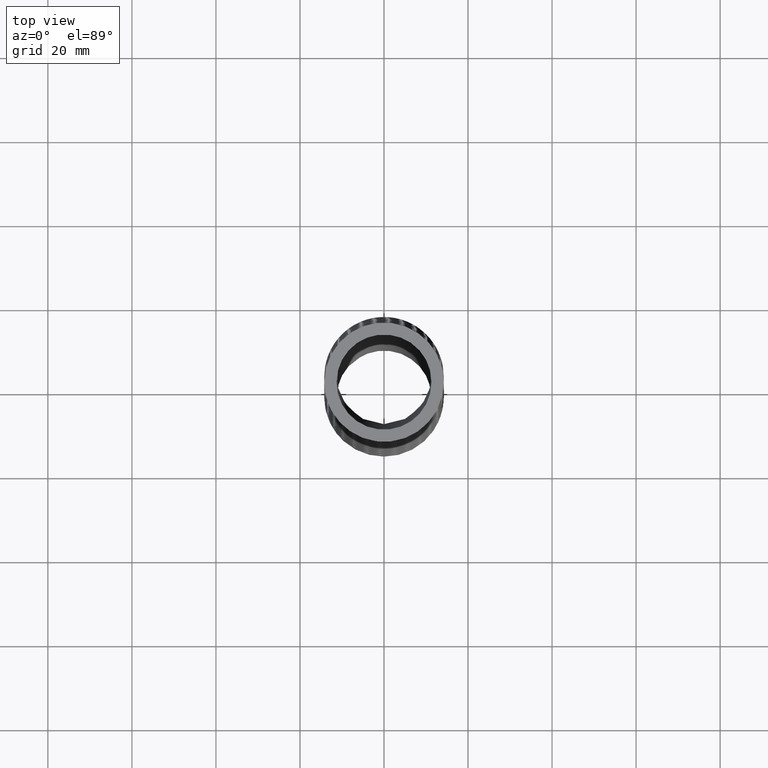
[diagram: clean part render]
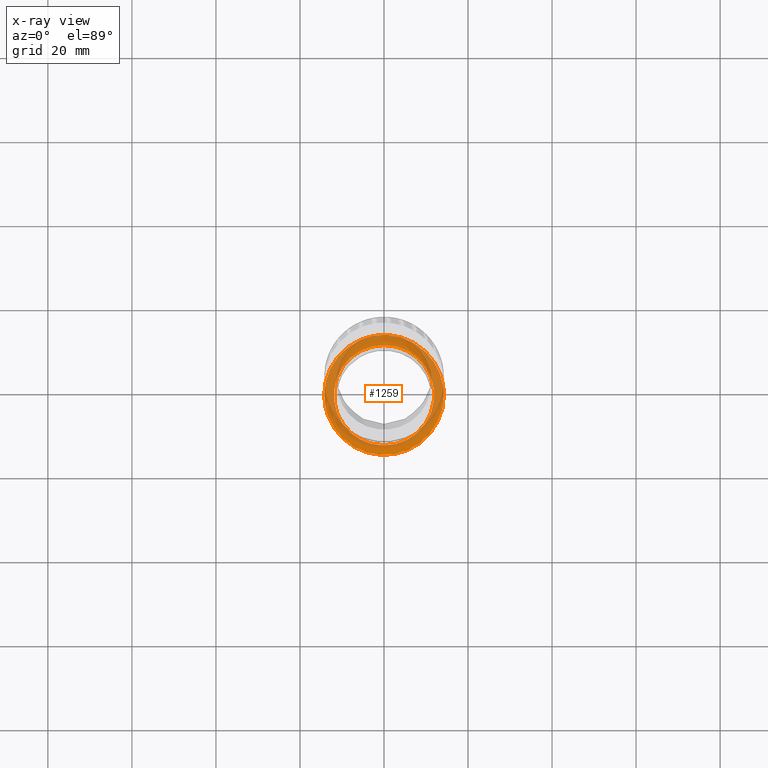
[diagram: x-ray — body ghosted, one internal face saturated and labeled with its STEP entity id]
A machine part, top view, then the same camera in x-ray: the body is ghosted and one INTERNAL B-rep face — a face not visible from any outside direction — is saturated and labeled: STEP entity #1259.
In plain terms, the highlighted planar face has unit normal (0, -0, 1).
Its self-contained STEP definition (entity closure, byte-faithful):
#174 = VERTEX_POINT ( 'NONE', #15003 ) ;
#186 = VERTEX_POINT ( 'NONE', #15100 ) ;
#205 = EDGE_CURVE ( 'NONE', #174, #186, #15317, .T. ) ;
#306 = EDGE_CURVE ( 'NONE', #186, #174, #15967, .T. ) ;
#1220 = EDGE_CURVE ( 'NONE', #12479, #12477, #4509, .T. ) ;
#1250 = ORIENTED_EDGE ( 'NONE', *, *, #12475, .F. ) ;
#1254 = ORIENTED_EDGE ( 'NONE', *, *, #1220, .F. ) ;
#1255 = ORIENTED_EDGE ( 'NONE', *, *, #306, .F. ) ;
#1256 = EDGE_LOOP ( 'NONE', ( #1250, #1254 ) ) ;
#1257 = ORIENTED_EDGE ( 'NONE', *, *, #205, .F. ) ;
#1258 = EDGE_LOOP ( 'NONE', ( #1257, #1255 ) ) ;
#1259 = ADVANCED_FACE ( 'NONE', ( #4606, #4605 ), #4647, .T. ) ;
#4505 = DIRECTION ( 'NONE',  ( 0.0000000000000000000, -1.000000000000000000, 0.0000000000000000000 ) ) ;
#4506 = DIRECTION ( 'NONE',  ( 0.0000000000000000000, -1.734723475976807100E-018, 1.000000000000000000 ) ) ;
#4507 = CARTESIAN_POINT ( 'NONE',  ( 0.0000000000000000000, -0.01280957977211061000, -6.354636470994573300 ) ) ;
#4508 = AXIS2_PLACEMENT_3D ( 'NONE', #4507, #4506, #4505 ) ;
#4509 = CIRCLE ( 'NONE', #4508, 0.4700000000000000300 ) ;
#4605 = FACE_BOUND ( 'NONE', #1256, .T. ) ;
#4606 = FACE_OUTER_BOUND ( 'NONE', #1258, .T. ) ;
#4642 = DIRECTION ( 'NONE',  ( 0.0000000000000000000, -1.000000000000000000, -1.734723475976807100E-018 ) ) ;
#4643 = DIRECTION ( 'NONE',  ( 0.0000000000000000000, -1.734723475976807100E-018, 1.000000000000000000 ) ) ;
#4644 = CARTESIAN_POINT ( 'NONE',  ( 0.0000000000000000000, 0.5571904202278894500, -6.354636470994573300 ) ) ;
#4645 = AXIS2_PLACEMENT_3D ( 'NONE', #4644, #4643, #4642 ) ;
#4647 = PLANE ( 'NONE',  #4645 ) ;
#12475 = EDGE_CURVE ( 'NONE', #12477, #12479, #14051, .T. ) ;
#12477 = VERTEX_POINT ( 'NONE', #14043 ) ;
#12479 = VERTEX_POINT ( 'NONE', #14042 ) ;
#14042 = CARTESIAN_POINT ( 'NONE',  ( 5.755839955992560900E-017, 0.4571904202278894200, -6.354636470994573300 ) ) ;
#14043 = CARTESIAN_POINT ( 'NONE',  ( 0.0000000000000000000, -0.4828095797721107000, -6.354636470994573300 ) ) ;
#14046 = DIRECTION ( 'NONE',  ( 0.0000000000000000000, -1.000000000000000000, 0.0000000000000000000 ) ) ;
#14047 = DIRECTION ( 'NONE',  ( 0.0000000000000000000, -1.734723475976807100E-018, 1.000000000000000000 ) ) ;
#14048 = CARTESIAN_POINT ( 'NONE',  ( 0.0000000000000000000, -0.01280957977211061000, -6.354636470994573300 ) ) ;
#14049 = AXIS2_PLACEMENT_3D ( 'NONE', #14048, #14047, #14046 ) ;
#14051 = CIRCLE ( 'NONE', #14049, 0.4700000000000000300 ) ;
#15003 = CARTESIAN_POINT ( 'NONE',  ( 0.5600000000000000500, -0.01037383061314198700, -6.354636470994579500 ) ) ;
#15100 = CARTESIAN_POINT ( 'NONE',  ( -0.5600000000000000500, -0.01037383061314080600, -6.354636470994575100 ) ) ;
#15279 = CARTESIAN_POINT ( 'NONE',  ( -0.1808579587989493100, -0.5423119688939533900, -6.354636470994573300 ) ) ;
#15280 = CARTESIAN_POINT ( 'NONE',  ( -0.1454905953630621900, -0.5531183373080493800, -6.354636470994574200 ) ) ;
#15281 = CARTESIAN_POINT ( 'NONE',  ( -0.1275721228312021200, -0.5576293404690222400, -6.354636470994575100 ) ) ;
#15282 = CARTESIAN_POINT ( 'NONE',  ( -0.07367333323163234600, -0.5684201576753237200, -6.354636470994575100 ) ) ;
#15283 = CARTESIAN_POINT ( 'NONE',  ( -0.03732460443517755800, -0.5720541283505185000, -6.354636470994571500 ) ) ;
#15284 = CARTESIAN_POINT ( 'NONE',  ( 0.01782936696322707400, -0.5721089885147172500, -6.354636470994571500 ) ) ;
#15285 = CARTESIAN_POINT ( 'NONE',  ( 0.03640872356547724500, -0.5712062766642895800, -6.354636470994576000 ) ) ;
#15286 = CARTESIAN_POINT ( 'NONE',  ( 0.07303362757676648600, -0.5675990347252626300, -6.354636470994577700 ) ) ;
#15287 = CARTESIAN_POINT ( 'NONE',  ( 0.09114521388643535800, -0.5649033572603865400, -6.354636470994577700 ) ) ;
#15289 = CARTESIAN_POINT ( 'NONE',  ( 0.1448906080352742600, -0.5541989208449642500, -6.354636470994576000 ) ) ;
#15290 = CARTESIAN_POINT ( 'NONE',  ( 0.1799756806578664800, -0.5435841204427138700, -6.354636470994573300 ) ) ;
#15291 = CARTESIAN_POINT ( 'NONE',  ( 0.2483769479299998700, -0.5151830954904930100, -6.354636470994571500 ) ) ;
#15292 = CARTESIAN_POINT ( 'NONE',  ( 0.2806158683014474700, -0.4978521622199457700, -6.354636470994575100 ) ) ;
#15293 = CARTESIAN_POINT ( 'NONE',  ( 0.3261521112023451100, -0.4673523119050871900, -6.354636470994576000 ) ) ;
#15294 = CARTESIAN_POINT ( 'NONE',  ( 0.3408570015291312300, -0.4564295332653218200, -6.354636470994573300 ) ) ;
#15295 = CARTESIAN_POINT ( 'NONE',  ( 0.3692974163442016000, -0.4330371021214976500, -6.354636470994574200 ) ) ;
#15297 = CARTESIAN_POINT ( 'NONE',  ( 0.3830565421403572300, -0.4205288870238526000, -6.354636470994576000 ) ) ;
#15298 = CARTESIAN_POINT ( 'NONE',  ( 0.4219679047922531600, -0.3814881289121478400, -6.354636470994574200 ) ) ;
#15299 = CARTESIAN_POINT ( 'NONE',  ( 0.4450938228216611000, -0.3532185293387144500, -6.354636470994570600 ) ) ;
#15300 = CARTESIAN_POINT ( 'NONE',  ( 0.4756005292083905200, -0.3074826037075730800, -6.354636470994573300 ) ) ;
#15301 = CARTESIAN_POINT ( 'NONE',  ( 0.4850993537432531900, -0.2916172324547943700, -6.354636470994577700 ) ) ;
#15302 = CARTESIAN_POINT ( 'NONE',  ( 0.5024932025019865900, -0.2589995435519709100, -6.354636470994574200 ) ) ;
#15303 = CARTESIAN_POINT ( 'NONE',  ( 0.5103212272727029000, -0.2423883678677467300, -6.354636470994568900 ) ) ;
#15305 = CARTESIAN_POINT ( 'NONE',  ( 0.5312807019336366300, -0.1916764132990413100, -6.354636470994569700 ) ) ;
#15306 = CARTESIAN_POINT ( 'NONE',  ( 0.5419113616974211600, -0.1567054913572945600, -6.354636470994574200 ) ) ;
#15307 = CARTESIAN_POINT ( 'NONE',  ( 0.5527280874478626100, -0.1024643951573974100, -6.354636470994575100 ) ) ;
#15309 = CARTESIAN_POINT ( 'NONE',  ( 0.5554612462069205000, -0.08409181241841669200, -6.354636470994569700 ) ) ;
#15310 = CARTESIAN_POINT ( 'NONE',  ( 0.5590886373815613400, -0.04734590430146968400, -6.354636470994574200 ) ) ;
#15311 = CARTESIAN_POINT ( 'NONE',  ( 0.5599999999999999400, -0.02889781235425170600, -6.354636470994578600 ) ) ;
#15312 = CARTESIAN_POINT ( 'NONE',  ( 0.5600000000000000500, -0.01037383061314198700, -6.354636470994579500 ) ) ;
#15317 = B_SPLINE_CURVE_WITH_KNOTS ( 'NONE', 3,
 ( #15312, #15311, #15310, #15309, #15307, #15306, #15305, #15303, #15302, #15301, #15300, #15299, #15298, #15297, #15295, #15294, #15293, #15292, #15291, #15290, #15289, #15287, #15286, #15285, #15284, #15283, #15282, #15281, #15280, #15279, #15398, #15396, #15394, #15393, #15392, #15391, #15390, #15389, #15388, #15387, #15386, #15385, #15384, #15383, #15382, #15381, #15380, #15379, #15378 ),
 .UNSPECIFIED., .F., .F.,
 ( 4, 2, 2, 2, 2, 2, 2, 2, 2, 2, 2, 2, 2, 2, 2, 2, 2, 2, 1, 2, 2, 2, 2, 2, 4 ),
 ( 0.0000000000000000000, 0.001406658941568674200, 0.002813317883137348900, 0.005626635766274700400, 0.007033294707843374900, 0.008439953649412048500, 0.01125327153254939400, 0.01265993047411807100, 0.01406658941568674800, 0.01687990729882410400, 0.01969322518196146500, 0.02109988412353014400, 0.02250654306509882300, 0.02531986094823618400, 0.02672651988980485900, 0.02813317883137354100, 0.03094649671451089900, 0.03235315565607957400, 0.03375981459764825600, 0.03516647353921693900, 0.03657313248078561400, 0.03938645036392296500, 0.04079310930549164700, 0.04219976824706031500, 0.04501308613019766600 ),
 .UNSPECIFIED. ) ;
#15378 = CARTESIAN_POINT ( 'NONE',  ( -0.5600000000000000500, -0.01037383061314080600, -6.354636470994575100 ) ) ;
#15379 = CARTESIAN_POINT ( 'NONE',  ( -0.5600000000000000500, -0.04711048030803565600, -6.354636470994574200 ) ) ;
#15380 = CARTESIAN_POINT ( 'NONE',  ( -0.5564409735539356200, -0.08346236734306088100, -6.354636470994574200 ) ) ;
#15381 = CARTESIAN_POINT ( 'NONE',  ( -0.5457944829426544200, -0.1374163608213533900, -6.354636470994574200 ) ) ;
#15382 = CARTESIAN_POINT ( 'NONE',  ( -0.5413311504261456600, -0.1553802042001648200, -6.354636470994575100 ) ) ;
#15383 = CARTESIAN_POINT ( 'NONE',  ( -0.5306593002834629800, -0.1907529744849033300, -6.354636470994574200 ) ) ;
#15384 = CARTESIAN_POINT ( 'NONE',  ( -0.5244949889318443200, -0.2080450511208664400, -6.354636470994570600 ) ) ;
#15385 = CARTESIAN_POINT ( 'NONE',  ( -0.5035894488515317800, -0.2587728903551180800, -6.354636470994569700 ) ) ;
#15386 = CARTESIAN_POINT ( 'NONE',  ( -0.4864585882180482200, -0.2910711978679369500, -6.354636470994568900 ) ) ;
#15387 = CARTESIAN_POINT ( 'NONE',  ( -0.4558377763138049000, -0.3371746071551681700, -6.354636470994568000 ) ) ;
#15388 = CARTESIAN_POINT ( 'NONE',  ( -0.4448197309101407600, -0.3521040911208198100, -6.354636470994577700 ) ) ;
#15389 = CARTESIAN_POINT ( 'NONE',  ( -0.4216096827483285000, -0.3805263618034441800, -6.354636470994577700 ) ) ;
#15390 = CARTESIAN_POINT ( 'NONE',  ( -0.3971187552535262500, -0.4076799347450341700, -6.354636470994564400 ) ) ;
#15391 = CARTESIAN_POINT ( 'NONE',  ( -0.3700988983422280900, -0.4323286292368695400, -6.354636470994568000 ) ) ;
#15392 = CARTESIAN_POINT ( 'NONE',  ( -0.3417943628731048300, -0.4557048628947383300, -6.354636470994569700 ) ) ;
#15393 = CARTESIAN_POINT ( 'NONE',  ( -0.3269122424351144100, -0.4668123270116259500, -6.354636470994571500 ) ) ;
#15394 = CARTESIAN_POINT ( 'NONE',  ( -0.2809956958811560300, -0.4976575897252645300, -6.354636470994570600 ) ) ;
#15396 = CARTESIAN_POINT ( 'NONE',  ( -0.2487884738286224600, -0.5149466720246590500, -6.354636470994571500 ) ) ;
#15398 = CARTESIAN_POINT ( 'NONE',  ( -0.1981354521723706600, -0.5360755299360416800, -6.354636470994568900 ) ) ;
#15922 = CARTESIAN_POINT ( 'NONE',  ( 0.5412440199309918000, 0.1349362390252436800, -6.354636470994570600 ) ) ;
#15923 = CARTESIAN_POINT ( 'NONE',  ( 0.5306486502492677700, 0.1700151437660283600, -6.354636470994568900 ) ) ;
#15924 = CARTESIAN_POINT ( 'NONE',  ( 0.5244545238126806500, 0.1874168450429784500, -6.354636470994574200 ) ) ;
#15925 = CARTESIAN_POINT ( 'NONE',  ( 0.5032839032790169500, 0.2386961651557616100, -6.354636470994575100 ) ) ;
#15926 = CARTESIAN_POINT ( 'NONE',  ( 0.4860507790768509600, 0.2709734832390418600, -6.354636470994569700 ) ) ;
#15927 = CARTESIAN_POINT ( 'NONE',  ( 0.4556775117693387400, 0.3166212659024158500, -6.354636470994570600 ) ) ;
#15928 = CARTESIAN_POINT ( 'NONE',  ( 0.4447936625189744000, 0.3313724640533495200, -6.354636470994569700 ) ) ;
#15929 = CARTESIAN_POINT ( 'NONE',  ( 0.4214663537153724400, 0.3599204606001214500, -6.354636470994570600 ) ) ;
#15930 = CARTESIAN_POINT ( 'NONE',  ( 0.4090149134566462600, 0.3737058875199569800, -6.354636470994575100 ) ) ;
#15931 = CARTESIAN_POINT ( 'NONE',  ( 0.3701347096334594600, 0.4127148359638957400, -6.354636470994575100 ) ) ;
#15932 = CARTESIAN_POINT ( 'NONE',  ( 0.3419426288595454100, 0.4359409260392469500, -6.354636470994576000 ) ) ;
#15933 = CARTESIAN_POINT ( 'NONE',  ( 0.2962487963110172500, 0.4666129469478172400, -6.354636470994576000 ) ) ;
#15934 = CARTESIAN_POINT ( 'NONE',  ( 0.2803591687113938200, 0.4761820318693648100, -6.354636470994574200 ) ) ;
#15935 = CARTESIAN_POINT ( 'NONE',  ( 0.2478343684218678200, 0.4936271792713209900, -6.354636470994571500 ) ) ;
#15936 = CARTESIAN_POINT ( 'NONE',  ( 0.2312577975760645200, 0.5014847322747174600, -6.354636470994575100 ) ) ;
#15937 = CARTESIAN_POINT ( 'NONE',  ( 0.1806110745023298000, 0.5225325438335249900, -6.354636470994574200 ) ) ;
#15938 = CARTESIAN_POINT ( 'NONE',  ( 0.1456327642875826200, 0.5332223290708687500, -6.354636470994573300 ) ) ;
#15939 = CARTESIAN_POINT ( 'NONE',  ( 0.09128488660641040400, 0.5440795807532132800, -6.354636470994573300 ) ) ;
#15940 = CARTESIAN_POINT ( 'NONE',  ( 0.07297186209064704400, 0.5467967404599681800, -6.354636470994570600 ) ) ;
#15941 = CARTESIAN_POINT ( 'NONE',  ( 0.03648448689578651100, 0.5503901238691919500, -6.354636470994570600 ) ) ;
#15942 = CARTESIAN_POINT ( 'NONE',  ( -2.273578749524759900E-005, 0.5521757254462724700, -6.354636470994575100 ) ) ;
#15943 = CARTESIAN_POINT ( 'NONE',  ( -0.03656921285939807000, 0.5503858937462881000, -6.354636470994571500 ) ) ;
#15944 = CARTESIAN_POINT ( 'NONE',  ( -0.07313566712187906400, 0.5467764664675076600, -6.354636470994576000 ) ) ;
#15945 = CARTESIAN_POINT ( 'NONE',  ( -0.09152703938932681100, 0.5440374711005563400, -6.354636470994569700 ) ) ;
#15946 = CARTESIAN_POINT ( 'NONE',  ( -0.1456995282620454100, 0.5331963633311518300, -6.354636470994570600 ) ) ;
#15947 = CARTESIAN_POINT ( 'NONE',  ( -0.1806458772932251500, 0.5225234872379301800, -6.354636470994575100 ) ) ;
#15948 = CARTESIAN_POINT ( 'NONE',  ( -0.2313461312328923000, 0.5014453106372125400, -6.354636470994576000 ) ) ;
#15949 = CARTESIAN_POINT ( 'NONE',  ( -0.2479576329900106700, 0.4935684329289302100, -6.354636470994574200 ) ) ;
#15950 = CARTESIAN_POINT ( 'NONE',  ( -0.2805835288071352200, 0.4760542457694474900, -6.354636470994574200 ) ) ;
#15951 = CARTESIAN_POINT ( 'NONE',  ( -0.2963575550671568900, 0.4665436798009491800, -6.354636470994570600 ) ) ;
#15952 = CARTESIAN_POINT ( 'NONE',  ( -0.3419620391472833500, 0.4359203931632695300, -6.354636470994571500 ) ) ;
#15953 = CARTESIAN_POINT ( 'NONE',  ( -0.3701621242064210800, 0.4126974293298005800, -6.354636470994568900 ) ) ;
#15954 = CARTESIAN_POINT ( 'NONE',  ( -0.4091164225548819000, 0.3735989705015175800, -6.354636470994568900 ) ) ;
#15955 = CARTESIAN_POINT ( 'NONE',  ( -0.4215785682364792700, 0.3597896652832643400, -6.354636470994574200 ) ) ;
#15956 = CARTESIAN_POINT ( 'NONE',  ( -0.4448416609523800900, 0.3313071453670773900, -6.354636470994575100 ) ) ;
#15957 = CARTESIAN_POINT ( 'NONE',  ( -0.4557077241265521900, 0.3165782219894756100, -6.354636470994568900 ) ) ;
#15958 = CARTESIAN_POINT ( 'NONE',  ( -0.4860573069405360000, 0.2709589406534868600, -6.354636470994570600 ) ) ;
#15959 = CARTESIAN_POINT ( 'NONE',  ( -0.5033461104498339100, 0.2385727382369460500, -6.354636470994574200 ) ) ;
#15960 = CARTESIAN_POINT ( 'NONE',  ( -0.5315700662190824300, 0.1701542632276544200, -6.354636470994574200 ) ) ;
#15961 = CARTESIAN_POINT ( 'NONE',  ( -0.5421145723527804900, 0.1351118287446332100, -6.354636470994569700 ) ) ;
#15962 = CARTESIAN_POINT ( 'NONE',  ( -0.5527836862009719600, 0.08134592431768844500, -6.354636470994570600 ) ) ;
#15963 = CARTESIAN_POINT ( 'NONE',  ( -0.5554757997724224500, 0.06322210540714073800, -6.354636470994571500 ) ) ;
#15964 = CARTESIAN_POINT ( 'NONE',  ( -0.5590896789586753400, 0.02656099589764991700, -6.354636470994568900 ) ) ;
#15965 = CARTESIAN_POINT ( 'NONE',  ( -0.5599999999999999400, 0.007994693562388667500, -6.354636470994573300 ) ) ;
#15966 = CARTESIAN_POINT ( 'NONE',  ( -0.5600000000000000500, -0.01037383061314080600, -6.354636470994575100 ) ) ;
#15967 = B_SPLINE_CURVE_WITH_KNOTS ( 'NONE', 3,
 ( #15966, #15965, #15964, #15963, #15962, #15961, #15960, #15959, #15958, #15957, #15956, #15955, #15954, #15953, #15952, #15951, #15950, #15949, #15948, #15947, #15946, #15945, #15944, #15943, #15942, #15941, #15940, #15939, #15938, #15937, #15936, #15935, #15934, #15933, #15932, #15931, #15930, #15929, #15928, #15927, #15926, #15925, #15924, #15923, #15922, #15991, #15990, #15989, #15988, #15987, #15986 ),
 .UNSPECIFIED., .F., .F.,
 ( 4, 2, 2, 2, 2, 2, 2, 2, 2, 2, 2, 2, 1, 2, 2, 2, 2, 2, 2, 2, 2, 2, 2, 2, 2, 4 ),
 ( 0.04501308613019766600, 0.04641976033644787400, 0.04782643454269807500, 0.05063978295519849100, 0.05345313136769890000, 0.05485980557394910800, 0.05626647978019930900, 0.05907982819269971800, 0.06048650239894992600, 0.06189317660520012700, 0.06470652501770053600, 0.06611319922395074400, 0.06751987343020093800, 0.06892654763645114600, 0.07033322184270135400, 0.07314657025520175700, 0.07455324446145196500, 0.07595991866770217300, 0.07877326708020258900, 0.08017994128645279700, 0.08158661549270300500, 0.08439996390520340700, 0.08580663811145361500, 0.08721331231770382300, 0.08861998652395403100, 0.09002666073020423900 ),
 .UNSPECIFIED. ) ;
#15986 = CARTESIAN_POINT ( 'NONE',  ( 0.5600000000000000500, -0.01037383061314198700, -6.354636470994579500 ) ) ;
#15987 = CARTESIAN_POINT ( 'NONE',  ( 0.5600000000000001600, 0.008150352145196250500, -6.354636470994579500 ) ) ;
#15988 = CARTESIAN_POINT ( 'NONE',  ( 0.5590801832514797900, 0.02668695601151806600, -6.354636470994574200 ) ) ;
#15989 = CARTESIAN_POINT ( 'NONE',  ( 0.5554677622339242400, 0.06327386756699594800, -6.354636470994571500 ) ) ;
#15990 = CARTESIAN_POINT ( 'NONE',  ( 0.5527784168332673400, 0.08137660542608812800, -6.354636470994573300 ) ) ;
#15991 = CARTESIAN_POINT ( 'NONE',  ( 0.5456665647500011900, 0.1172077952730964200, -6.354636470994574200 ) ) ;